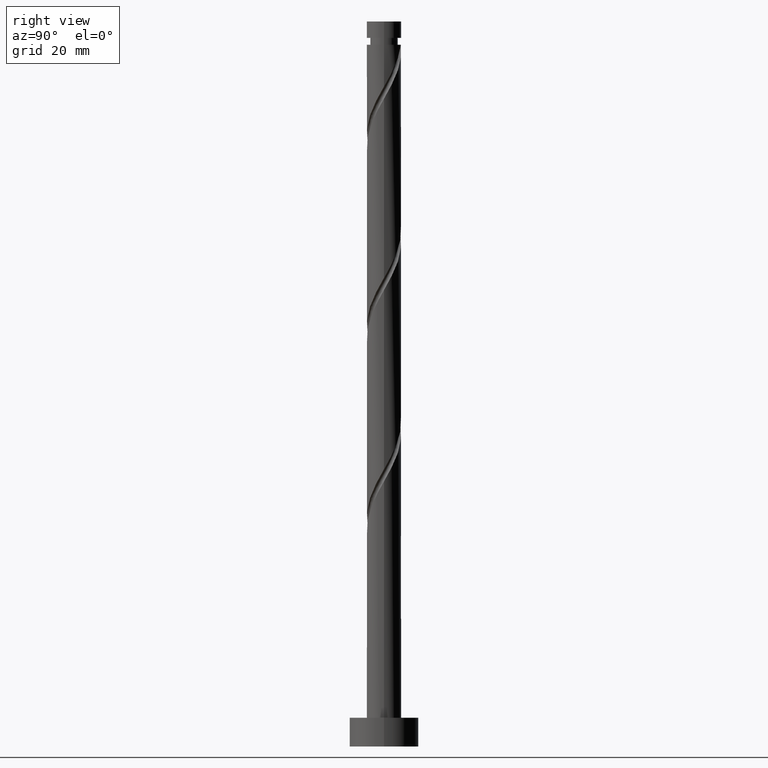
[diagram: clean part render]
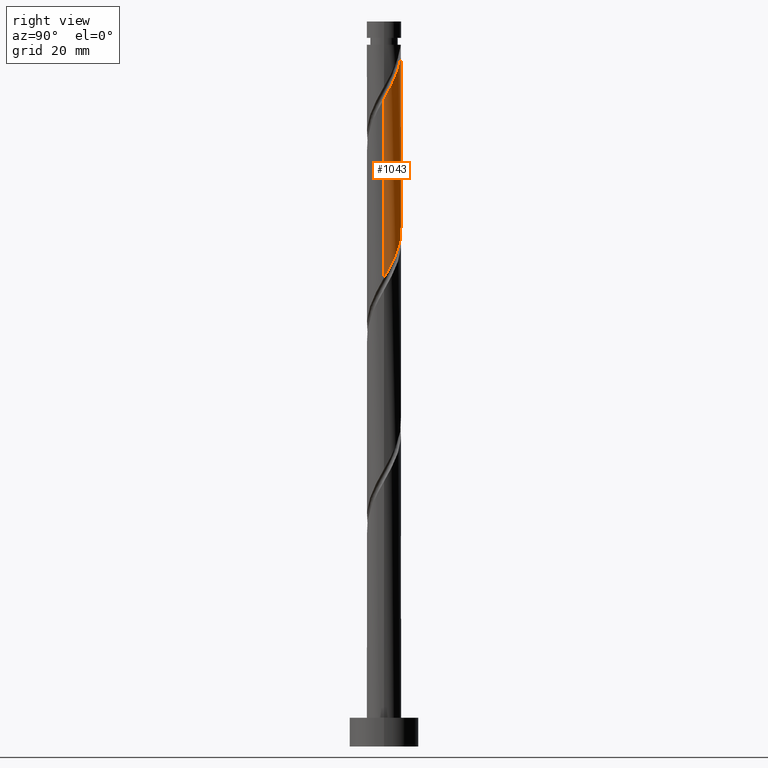
[diagram: same view with one face highlighted and labeled with its STEP entity id]
A machine part, right view. The second image highlights one B-rep face of the part: STEP entity #1043.
In plain terms, the highlighted cylindrical surface (edge-blend (fillet) strip) has radius 3 mm, axis along (-0, -0, -1).
Its self-contained STEP definition (entity closure, byte-faithful):
#22 = VERTEX_POINT ( 'NONE', #530 ) ;
#51 = CARTESIAN_POINT ( 'NONE',  ( -1.656756518304342007, 2.501031355072559137, 93.07785612186935964 ) ) ;
#58 = CARTESIAN_POINT ( 'NONE',  ( 0.9840508051709182524, 2.861404451302097751, 88.21674501075825958 ) ) ;
#70 = CARTESIAN_POINT ( 'NONE',  ( 3.000000000000000444, 3.673940397442060361E-16, 126.2999999999999972 ) ) ;
#71 = DIRECTION ( 'NONE',  ( -0.000000000000000000, -0.000000000000000000, -1.000000000000000000 ) ) ;
#84 = EDGE_CURVE ( 'NONE', #223, #420, #1335, .T. ) ;
#93 = CARTESIAN_POINT ( 'NONE',  ( 3.000000000000005773, 0.3015113445777611867, 113.3810491691819351 ) ) ;
#105 = CARTESIAN_POINT ( 'NONE',  ( 0.000000000000000000, 0.000000000000000000, 126.2999999999999972 ) ) ;
#106 = CARTESIAN_POINT ( 'NONE',  ( 1.656756518304345116, 2.501031355072562246, 118.0778561218693881 ) ) ;
#152 = VERTEX_POINT ( 'NONE', #730 ) ;
#174 = ORIENTED_EDGE ( 'NONE', *, *, #1230, .T. ) ;
#179 = CARTESIAN_POINT ( 'NONE',  ( -0.1842775552007387407, 2.994334948306426103, 90.30007834409160239 ) ) ;
#217 = ORIENTED_EDGE ( 'NONE', *, *, #780, .F. ) ;
#223 = VERTEX_POINT ( 'NONE', #1624 ) ;
#241 = ORIENTED_EDGE ( 'NONE', *, *, #84, .T. ) ;
#256 = CARTESIAN_POINT ( 'NONE',  ( 1.327489493864653758, 2.719147488601527218, 118.7723005663138167 ) ) ;
#277 = CARTESIAN_POINT ( 'NONE',  ( 2.719147488601524998, 1.327489493864647763, 84.05007834409157397 ) ) ;
#285 = CARTESIAN_POINT ( 'NONE',  ( -2.940000000000000391, 0.5969924622639720679, 97.24452278853605947 ) ) ;
#303 = CARTESIAN_POINT ( 'NONE',  ( -2.685308910273296767, 1.337578430002084540, 95.85563389964717373 ) ) ;
#311 = CARTESIAN_POINT ( 'NONE',  ( 2.501031355072559137, 1.656756518304341119, 84.74452278853604525 ) ) ;
#320 =( BOUNDED_CURVE ( )  B_SPLINE_CURVE ( 2, ( #560, #1640, #285, #427, #303, #417, #958, #841, #51, #574, #1497, #1504, #179, #969, #1515, #58, #1119, #594, #1660, #986, #311, #277, #816, #1556, #1405, #618, #1277 ),
 .UNSPECIFIED., .F., .T. ) 
 B_SPLINE_CURVE_WITH_KNOTS ( ( 3, 2, 2, 2, 2, 2, 2, 2, 2, 2, 2, 2, 2, 3 ),
 ( 0.4295317669814462391, 0.4375000000000000000, 0.4479166666666666852, 0.4583333333333333148, 0.4687500000000000000, 0.4791666666666666852, 0.4895833333333333148, 0.5000000000000000000, 0.5104166666666666297, 0.5208333333333333703, 0.5312500000000000000, 0.5416666666666666297, 0.5520833333333333703, 0.5545317669814463502 ),
 .UNSPECIFIED. ) 
 CURVE ( )  GEOMETRIC_REPRESENTATION_ITEM ( )  RATIONAL_B_SPLINE_CURVE ( ( 0.9062941362546335089, 0.9031415850403377021, 0.9090909090909129464, 0.9013135103398315362, 0.9090909090909129464, 0.9013135103398315362, 0.9090909090909129464, 0.9013135103398315362, 0.9090909090909129464, 0.9013135103398315362, 0.9090909090909129464, 0.9013135103398315362, 0.9090909090909129464, 0.9013135103398315362, 0.9090909090909129464, 0.9013135103398315362, 0.9090909090909129464, 0.9013135103398315362, 0.9090909090909129464, 0.9013135103398315362, 0.9090909090909129464, 0.9013135103398315362, 0.9090909090909129464, 0.9013135103398315362, 0.9090909090909129464, 0.9072628343904066694, 0.9062941362546331758 ) ) 
 REPRESENTATION_ITEM ( '' )  );
#374 = AXIS2_PLACEMENT_3D ( 'NONE', #1224, #1208, #1612 ) ;
#395 =( BOUNDED_CURVE ( )  B_SPLINE_CURVE ( 2, ( #492, #93, #920, #763, #1306, #1602, #1204, #1743, #106, #256, #535, #505, #1064, #1480, #1166 ),
 .UNSPECIFIED., .F., .T. ) 
 B_SPLINE_CURVE_WITH_KNOTS ( ( 3, 2, 2, 2, 2, 2, 2, 3 ),
 ( 0.6795317669814462391, 0.6875000000000000000, 0.6979166666666668517, 0.7083333333333333703, 0.7187500000000001110, 0.7291666666666668517, 0.7395833333333334814, 0.7500000000000002220 ),
 .UNSPECIFIED. ) 
 CURVE ( )  GEOMETRIC_REPRESENTATION_ITEM ( )  RATIONAL_B_SPLINE_CURVE ( ( 0.9062941362546396151, 0.9031415850403439194, 0.9090909090909191637, 0.9013135103398377534, 0.9090909090909191637, 0.9013135103398377534, 0.9090909090909191637, 0.9013135103398377534, 0.9090909090909191637, 0.9013135103398377534, 0.9090909090909191637, 0.9013135103398377534, 0.9090909090909191637, 0.9013135103398375314, 0.9090909090909193857 ) ) 
 REPRESENTATION_ITEM ( '' )  );
#417 = CARTESIAN_POINT ( 'NONE',  ( -2.509213369244495784, 1.691106054833251493, 95.16118945520268824 ) ) ;
#420 = VERTEX_POINT ( 'NONE', #738 ) ;
#427 = CARTESIAN_POINT ( 'NONE',  ( -2.861404451302099083, 0.9840508051709158099, 96.55007834409158818 ) ) ;
#467 = DIRECTION ( 'NONE',  ( -0.000000000000000000, -0.000000000000000000, -1.000000000000000000 ) ) ;
#474 = LINE ( 'NONE', #70, #1139 ) ;
#492 = CARTESIAN_POINT ( 'NONE',  ( 3.000000000000005329, 2.138391175437683903E-15, 112.8476227999926635 ) ) ;
#505 = CARTESIAN_POINT ( 'NONE',  ( 0.5784892297585089160, 2.970074347914952728, 120.1611894552027167 ) ) ;
#527 = LINE ( 'NONE', #1197, #716 ) ;
#530 = CARTESIAN_POINT ( 'NONE',  ( -3.000000000000000444, 1.345840599925824084E-15, 98.30808944374611258 ) ) ;
#535 = CARTESIAN_POINT ( 'NONE',  ( 0.9529893618115813370, 2.844610918258240417, 119.4667450107582880 ) ) ;
#560 = CARTESIAN_POINT ( 'NONE',  ( -3.000000000000000444, 1.345840599925824084E-15, 98.30808944374611258 ) ) ;
#574 = CARTESIAN_POINT ( 'NONE',  ( -1.327489493864650649, 2.719147488601523222, 92.38341167742494520 ) ) ;
#594 = CARTESIAN_POINT ( 'NONE',  ( 1.691106054833253269, 2.509213369244494451, 86.82785612186934543 ) ) ;
#608 = CYLINDRICAL_SURFACE ( 'NONE', #1542, 3.000000000000000444 ) ;
#618 = CARTESIAN_POINT ( 'NONE',  ( 3.000000000000000888, 0.09222585497301824531, 81.80458646510759024 ) ) ;
#716 = VECTOR ( 'NONE', #1055, 1000.000000000000000 ) ;
#730 = CARTESIAN_POINT ( 'NONE',  ( 3.000000000000001332, -3.050572026498535773E-15, 81.64142277707944118 ) ) ;
#738 = CARTESIAN_POINT ( 'NONE',  ( -0.5969924622639714018, 2.940000000000005276, 122.2445227885360737 ) ) ;
#763 = CARTESIAN_POINT ( 'NONE',  ( 2.861404451302103968, 0.9840508051709155879, 114.6056338996471595 ) ) ;
#775 = FACE_OUTER_BOUND ( 'NONE', #892, .T. ) ;
#780 = EDGE_CURVE ( 'NONE', #22, #152, #320, .T. ) ;
#816 = CARTESIAN_POINT ( 'NONE',  ( 2.844610918258237309, 0.9529893618115758969, 83.35563389964715952 ) ) ;
#841 = CARTESIAN_POINT ( 'NONE',  ( -1.986023542744033366, 2.282915221543594164, 93.77230056631383093 ) ) ;
#867 = DIRECTION ( 'NONE',  ( -1.000000000000000000, 0.000000000000000000, 0.000000000000000000 ) ) ;
#892 = EDGE_LOOP ( 'NONE', ( #1422, #174, #217, #1328, #241 ) ) ;
#920 = CARTESIAN_POINT ( 'NONE',  ( 2.940000000000006164, 0.5969924622639717349, 113.9111894552027309 ) ) ;
#958 = CARTESIAN_POINT ( 'NONE',  ( -2.247618455994264242, 1.987010638188423162, 94.46674501075830221 ) ) ;
#969 = CARTESIAN_POINT ( 'NONE',  ( 0.2099341193570279096, 3.018595548697902142, 89.60563389964715952 ) ) ;
#986 = CARTESIAN_POINT ( 'NONE',  ( 2.282915221543595052, 1.986023542744032477, 85.43896723298045970 ) ) ;
#1043 = ADVANCED_FACE ( 'NONE', ( #775 ), #608, .T. ) ;
#1055 = DIRECTION ( 'NONE',  ( -0.000000000000000000, -0.000000000000000000, -1.000000000000000000 ) ) ;
#1064 = CARTESIAN_POINT ( 'NONE',  ( 0.1842775552007421547, 2.994334948306430100, 120.8556338996471737 ) ) ;
#1119 = CARTESIAN_POINT ( 'NONE',  ( 1.337578430002085428, 2.685308910273296323, 87.52230056631384514 ) ) ;
#1139 = VECTOR ( 'NONE', #467, 1000.000000000000000 ) ;
#1166 = CARTESIAN_POINT ( 'NONE',  ( -0.5969924622639714018, 2.940000000000005276, 122.2445227885360595 ) ) ;
#1197 = CARTESIAN_POINT ( 'NONE',  ( -3.000000000000000444, 0.000000000000000000, 126.2999999999999972 ) ) ;
#1204 = CARTESIAN_POINT ( 'NONE',  ( 2.247618455994269127, 1.987010638188424494, 116.6889672329805450 ) ) ;
#1208 = DIRECTION ( 'NONE',  ( -0.000000000000000000, -0.000000000000000000, -1.000000000000000000 ) ) ;
#1224 = CARTESIAN_POINT ( 'NONE',  ( 0.000000000000000000, 0.000000000000000000, 122.2445227885360310 ) ) ;
#1230 = EDGE_CURVE ( 'NONE', #1573, #152, #474, .T. ) ;
#1277 = CARTESIAN_POINT ( 'NONE',  ( 3.000000000000001332, -3.050572026498535773E-15, 81.64142277707944118 ) ) ;
#1306 = CARTESIAN_POINT ( 'NONE',  ( 2.685308910273302985, 1.337578430002083874, 115.3000783440916166 ) ) ;
#1328 = ORIENTED_EDGE ( 'NONE', *, *, #1492, .F. ) ;
#1335 = CIRCLE ( 'NONE', #374, 2.999999999999997780 ) ;
#1374 = CARTESIAN_POINT ( 'NONE',  ( 3.000000000000005329, 2.138391175437683903E-15, 112.8476227999926635 ) ) ;
#1405 = CARTESIAN_POINT ( 'NONE',  ( 2.994334948306426103, 0.1842775552007375195, 81.96674501075827379 ) ) ;
#1422 = ORIENTED_EDGE ( 'NONE', *, *, #1505, .F. ) ;
#1480 = CARTESIAN_POINT ( 'NONE',  ( -0.2099341193570330444, 3.018595548697907027, 121.5500783440916166 ) ) ;
#1492 = EDGE_CURVE ( 'NONE', #223, #22, #527, .T. ) ;
#1497 = CARTESIAN_POINT ( 'NONE',  ( -0.9529893618115777842, 2.844610918258236421, 91.68896723298050233 ) ) ;
#1504 = CARTESIAN_POINT ( 'NONE',  ( -0.5784892297585059184, 2.970074347914948731, 90.99452278853604525 ) ) ;
#1505 = EDGE_CURVE ( 'NONE', #1573, #420, #395, .T. ) ;
#1515 = CARTESIAN_POINT ( 'NONE',  ( 0.5969924622639726230, 2.940000000000000391, 88.91118945520274508 ) ) ;
#1542 = AXIS2_PLACEMENT_3D ( 'NONE', #105, #71, #867 ) ;
#1556 = CARTESIAN_POINT ( 'NONE',  ( 2.970074347914949620, 0.5784892297585034759, 82.66118945520271666 ) ) ;
#1573 = VERTEX_POINT ( 'NONE', #1374 ) ;
#1602 = CARTESIAN_POINT ( 'NONE',  ( 2.509213369244499781, 1.691106054833251715, 115.9945227885360310 ) ) ;
#1612 = DIRECTION ( 'NONE',  ( -1.000000000000000000, 0.000000000000000000, 0.000000000000000000 ) ) ;
#1624 = CARTESIAN_POINT ( 'NONE',  ( -2.999999999999997780, 0.000000000000000000, 122.2445227885360310 ) ) ;
#1640 = CARTESIAN_POINT ( 'NONE',  ( -3.000000000000001776, 0.3015113445777624634, 97.77466307455681260 ) ) ;
#1660 = CARTESIAN_POINT ( 'NONE',  ( 1.987010638188424050, 2.247618455994263797, 86.13341167742491677 ) ) ;
#1743 = CARTESIAN_POINT ( 'NONE',  ( 1.986023542744038917, 2.282915221543595496, 117.3834116774249310 ) ) ;